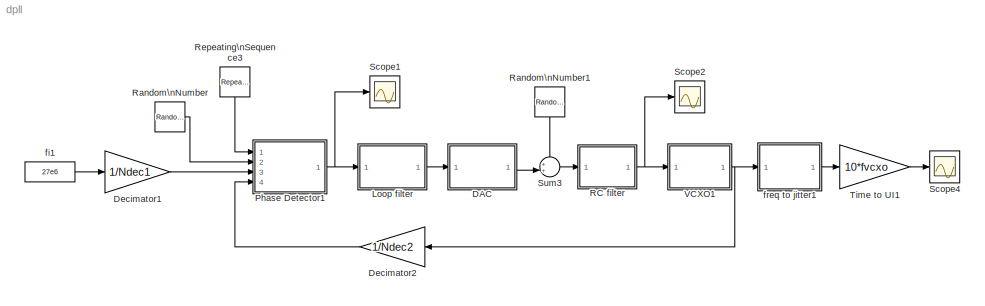
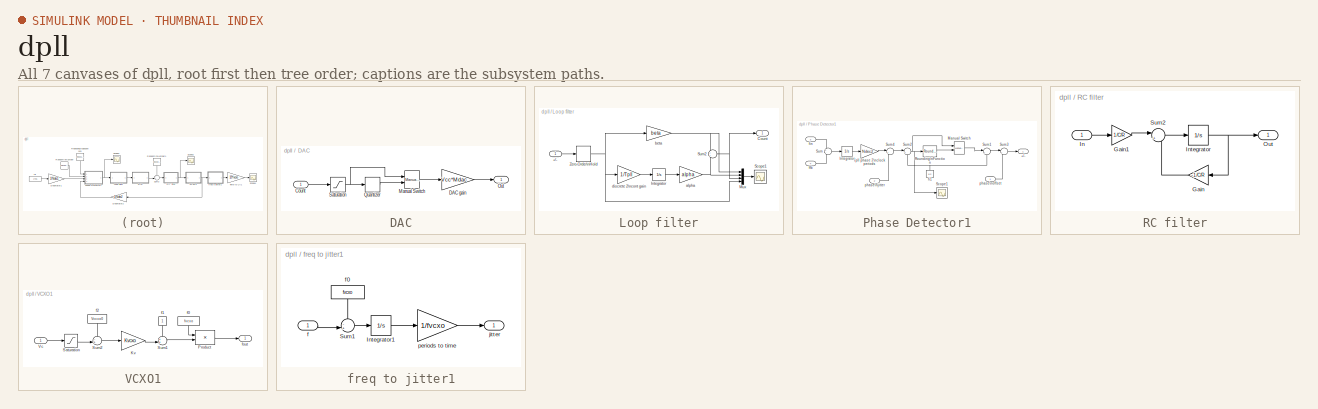
[diagram: thumbnail index - all 7 canvases of the model, root first then tree order]
MODEL dpll
KIND model
CONFIG AbsTol = 1e-12
CONFIG FixedStep = auto
CONFIG MaxStep = auto
CONFIG MinStep = auto
CONFIG RelTol = 1e-9
CONFIG Solver = ode45
CONFIG SolverMode = Auto
CONFIG StartTime = 0.0
CONFIG StopTime = 10
BLOCK [SubSystem] DAC
  Ports = [1, 1]
  TreatAsAtomicUnit = off
BLOCK [Inport] DAC/Count
BLOCK [Gain] DAC/DAC gain
  Gain = Vcc*Mdac
BLOCK [Reference] DAC/Manual Switch  REF=simulink/Signal\nRouting/Manual Switch
  Ports = [2, 1]
  SourceBlock = simulink/Signal\nRouting/Manual Switch
  SourceType = Manual Switch
  action = 0
  sw = 0
BLOCK [Outport] DAC/Out
BLOCK [Quantizer] DAC/Quantizer
  QuantizationInterval = 2^-Nbits
BLOCK [Saturate] DAC/Saturation
  LowerLimit = 0
  UpperLimit = 1
BLOCK [Gain] Decimator1
  Gain = 1/Ndec1
BLOCK [Gain] Decimator2
  Gain = 1/Ndec2
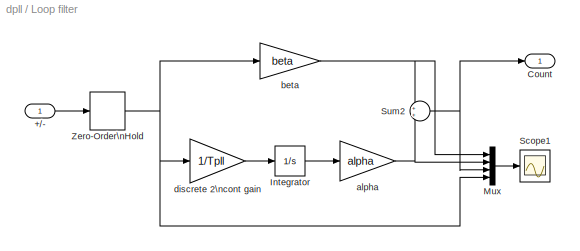
BLOCK [SubSystem] Loop filter
  Ports = [1, 1]
  TreatAsAtomicUnit = off
BLOCK [Inport] Loop filter/+//-
BLOCK [Outport] Loop filter/Count
BLOCK [Integrator] Loop filter/Integrator
  Ports = [1, 1]
BLOCK [Mux] Loop filter/Mux
  DisplayOption = bar
  Ports = [4, 1]
BLOCK [Scope] Loop filter/Scope1
  DataFormat = StructureWithTime
  LimitDataPoints = off
  NumInputPorts = 1
  Ports = [1]
  SaveName = ScopeData5
  TimeRange = 10
  YMax = 6.5
  YMin = -0.5
  ZoomMode = yonly
BLOCK [Sum] Loop filter/Sum2
  IconShape = round
  InputSameDT = off
  OutDataTypeMode = Inherit via internal rule
  Ports = [2, 1]
BLOCK [ZeroOrderHold] Loop filter/Zero-Order\nHold
  SampleTime = Tpll
BLOCK [Gain] Loop filter/alpha
  Gain = alpha
BLOCK [Gain] Loop filter/beta
  Gain = beta
BLOCK [Gain] Loop filter/discrete 2\ncont gain
  Gain = 1/Tpll
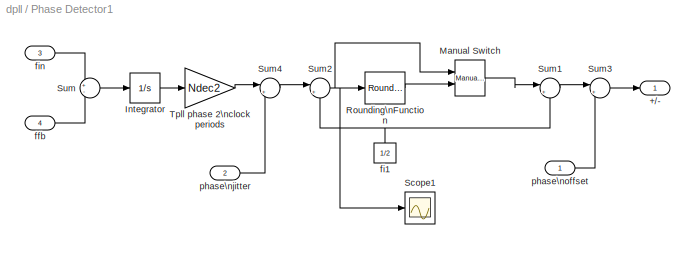
BLOCK [SubSystem] Phase Detector1
  Ports = [4, 1]
  TreatAsAtomicUnit = off
BLOCK [Outport] Phase Detector1/+//-
BLOCK [Integrator] Phase Detector1/Integrator
  Ports = [1, 1]
BLOCK [Reference] Phase Detector1/Manual Switch  REF=simulink/Signal\nRouting/Manual Switch
  Ports = [2, 1]
  SourceBlock = simulink/Signal\nRouting/Manual Switch
  SourceType = Manual Switch
  action = 0
  sw = 0
BLOCK [Rounding] Phase Detector1/Rounding\nFunction
  Operator = round
BLOCK [Scope] Phase Detector1/Scope1
  DataFormat = StructureWithTime
  LimitDataPoints = off
  NumInputPorts = 1
  Ports = [1]
  SaveName = ScopeData1
  TimeRange = 10
  YMax = 6.5
  YMin = -0.5
  ZoomMode = xonly
BLOCK [Sum] Phase Detector1/Sum
  IconShape = round
  InputSameDT = off
  Inputs = +-
  OutDataTypeMode = Inherit via internal rule
  Ports = [2, 1]
BLOCK [Sum] Phase Detector1/Sum1
  IconShape = round
  InputSameDT = off
  Inputs = |++
  OutDataTypeMode = Inherit via internal rule
  Ports = [2, 1]
BLOCK [Sum] Phase Detector1/Sum2
  IconShape = round
  InputSameDT = off
  Inputs = |+-
  OutDataTypeMode = Inherit via internal rule
  Ports = [2, 1]
BLOCK [Sum] Phase Detector1/Sum3
  IconShape = round
  InputSameDT = off
  Inputs = |++
  OutDataTypeMode = Inherit via internal rule
  Ports = [2, 1]
BLOCK [Sum] Phase Detector1/Sum4
  IconShape = round
  InputSameDT = off
  Inputs = |++
  OutDataTypeMode = Inherit via internal rule
  Ports = [2, 1]
BLOCK [Gain] Phase Detector1/Tpll phase 2\nclock periods
  Gain = Ndec2
BLOCK [Inport] Phase Detector1/ffb
  Port = 4
BLOCK [Constant] Phase Detector1/fi1
  Value = 1/2
BLOCK [Inport] Phase Detector1/fin
  Port = 3
BLOCK [Inport] Phase Detector1/phase\njitter
  Port = 2
BLOCK [Inport] Phase Detector1/phase\noffset
BLOCK [SubSystem] RC filter
  Ports = [1, 1]
  TreatAsAtomicUnit = off
BLOCK [Gain] RC filter/Gain
  Gain = -1/C/R
BLOCK [Gain] RC filter/Gain1
  Gain = 1/C/R
BLOCK [Inport] RC filter/In
BLOCK [Integrator] RC filter/Integrator
  InitialCondition = Vvcxo0
  Ports = [1, 1]
BLOCK [Outport] RC filter/Out
BLOCK [Sum] RC filter/Sum2
  IconShape = round
  InputSameDT = off
  Inputs = |++
  OutDataTypeMode = Inherit via internal rule
  Ports = [2, 1]
BLOCK [RandomNumber] Random\nNumber
  SampleTime = Tpll
  Variance = 0.05
BLOCK [RandomNumber] Random\nNumber1
  SampleTime = Tpll
  Variance = 0.1e-3
BLOCK [Reference] Repeating\nSequence3  REF=simulink/Sources/Repeating\nSequence
  Ports = [0, 1]
  SourceBlock = simulink/Sources/Repeating\nSequence
  SourceType = Repeating table
  rep_seq_t = [0 0.5 0.5 1]*5
  rep_seq_y = [0 0 1 1]*5
BLOCK [Scope] Scope1
  DataFormat = StructureWithTime
  LimitDataPoints = off
  NumInputPorts = 1
  Ports = [1]
  TimeRange = 10
  YMax = 180
  YMin = -30
  ZoomMode = yonly
BLOCK [Scope] Scope2
  DataFormat = StructureWithTime
  LimitDataPoints = off
  NumInputPorts = 1
  Ports = [1]
  SaveName = ScopeData3
  TimeRange = 10
  YMax = 1.2511
  YMin = 1.2496
  ZoomMode = yonly
BLOCK [Scope] Scope4
  DataFormat = StructureWithTime
  LimitDataPoints = off
  NumInputPorts = 1
  Ports = [1]
  SaveName = ScopeData2
  TimeRange = 10
  YMax = 55
  YMin = -10
  ZoomMode = yonly
BLOCK [Sum] Sum3
  IconShape = round
  InputSameDT = off
  Inputs = ++|
  OutDataTypeMode = Inherit via internal rule
  Ports = [2, 1]
BLOCK [Gain] Time to UI1
  Gain = 10*fvcxo
BLOCK [SubSystem] VCXO1
  Ports = [1, 1]
  TreatAsAtomicUnit = off
BLOCK [Gain] VCXO1/Kv
  Gain = Kvcxo
BLOCK [Product] VCXO1/Product
  InputSameDT = off
  Ports = [2, 1]
BLOCK [Saturate] VCXO1/Saturation
  LowerLimit = Vvcxomin
  UpperLimit = Vvcxomax
BLOCK [Sum] VCXO1/Sum1
  IconShape = round
  InputSameDT = off
  Inputs = ++|
  OutDataTypeMode = Inherit via internal rule
  Ports = [2, 1]
BLOCK [Sum] VCXO1/Sum2
  IconShape = round
  InputSameDT = off
  Inputs = -+|
  OutDataTypeMode = Inherit via internal rule
  Ports = [2, 1]
BLOCK [Inport] VCXO1/Vc
BLOCK [Constant] VCXO1/f0
  Value = fvcxo
BLOCK [Constant] VCXO1/f1
BLOCK [Constant] VCXO1/f2
  Value = Vvcxo0
BLOCK [Outport] VCXO1/fout
BLOCK [Constant] fi1
  Value = 27e6
BLOCK [SubSystem] freq to jitter1
  Ports = [1, 1]
  TreatAsAtomicUnit = off
BLOCK [Integrator] freq to jitter1/Integrator1
  Ports = [1, 1]
BLOCK [Sum] freq to jitter1/Sum1
  IconShape = round
  InputSameDT = off
  Inputs = -+|
  OutDataTypeMode = Inherit via internal rule
  Ports = [2, 1]
BLOCK [Inport] freq to jitter1/f
BLOCK [Constant] freq to jitter1/f0
  Value = fvcxo
BLOCK [Outport] freq to jitter1/jitter
BLOCK [Gain] freq to jitter1/periods to time
  Gain = 1/fvcxo
LINE DAC/Count:1 -> DAC/Saturation:1
LINE DAC/DAC gain:1 -> DAC/Out:1
LINE DAC/Manual Switch:1 -> DAC/DAC gain:1
LINE DAC/Quantizer:1 -> DAC/Manual Switch:2
NET DAC/Saturation:1 -> DAC/Manual Switch:1, DAC/Quantizer:1
LINE DAC:1 -> Sum3:2
LINE Decimator1:1 -> Phase Detector1:3
LINE Decimator2:1 -> Phase Detector1:4
LINE Loop filter/+//-:1 -> Loop filter/Zero-Order\nHold:1
LINE Loop filter/Integrator:1 -> Loop filter/alpha:1
LINE Loop filter/Mux:1 -> Loop filter/Scope1:1
NET Loop filter/Sum2:1 -> Loop filter/Count:1, Loop filter/Mux:3
NET Loop filter/Zero-Order\nHold:1 -> Loop filter/Mux:4, Loop filter/beta:1, Loop filter/discrete 2\ncont gain:1
NET Loop filter/alpha:1 -> Loop filter/Mux:2, Loop filter/Sum2:2
NET Loop filter/beta:1 -> Loop filter/Mux:1, Loop filter/Sum2:1
LINE Loop filter/discrete 2\ncont gain:1 -> Loop filter/Integrator:1
LINE Loop filter:1 -> DAC:1
LINE Phase Detector1/Integrator:1 -> Phase Detector1/Tpll phase 2\nclock periods:1
LINE Phase Detector1/Manual Switch:1 -> Phase Detector1/Sum1:1
LINE Phase Detector1/Rounding\nFunction:1 -> Phase Detector1/Manual Switch:2
LINE Phase Detector1/Sum1:1 -> Phase Detector1/Sum3:1
NET Phase Detector1/Sum2:1 -> Phase Detector1/Manual Switch:1, Phase Detector1/Rounding\nFunction:1, Phase Detector1/Scope1:1
LINE Phase Detector1/Sum3:1 -> Phase Detector1/+//-:1
LINE Phase Detector1/Sum4:1 -> Phase Detector1/Sum2:1
LINE Phase Detector1/Sum:1 -> Phase Detector1/Integrator:1
LINE Phase Detector1/Tpll phase 2\nclock periods:1 -> Phase Detector1/Sum4:1
LINE Phase Detector1/ffb:1 -> Phase Detector1/Sum:2
NET Phase Detector1/fi1:1 -> Phase Detector1/Sum1:2, Phase Detector1/Sum2:2
LINE Phase Detector1/fin:1 -> Phase Detector1/Sum:1
LINE Phase Detector1/phase\njitter:1 -> Phase Detector1/Sum4:2
LINE Phase Detector1/phase\noffset:1 -> Phase Detector1/Sum3:2
NET Phase Detector1:1 -> Loop filter:1, Scope1:1
LINE RC filter/Gain1:1 -> RC filter/Sum2:1
LINE RC filter/Gain:1 -> RC filter/Sum2:2
LINE RC filter/In:1 -> RC filter/Gain1:1
NET RC filter/Integrator:1 -> RC filter/Gain:1, RC filter/Out:1
LINE RC filter/Sum2:1 -> RC filter/Integrator:1
NET RC filter:1 -> Scope2:1, VCXO1:1
LINE Random\nNumber1:1 -> Sum3:1
LINE Random\nNumber:1 -> Phase Detector1:2
LINE Repeating\nSequence3:1 -> Phase Detector1:1
LINE Sum3:1 -> RC filter:1
LINE Time to UI1:1 -> Scope4:1
LINE VCXO1/Kv:1 -> VCXO1/Sum1:2
LINE VCXO1/Product:1 -> VCXO1/fout:1
LINE VCXO1/Saturation:1 -> VCXO1/Sum2:2
LINE VCXO1/Sum1:1 -> VCXO1/Product:2
LINE VCXO1/Sum2:1 -> VCXO1/Kv:1
LINE VCXO1/Vc:1 -> VCXO1/Saturation:1
LINE VCXO1/f0:1 -> VCXO1/Product:1
LINE VCXO1/f1:1 -> VCXO1/Sum1:1
LINE VCXO1/f2:1 -> VCXO1/Sum2:1
NET VCXO1:1 -> Decimator2:1, freq to jitter1:1
LINE fi1:1 -> Decimator1:1
LINE freq to jitter1/Integrator1:1 -> freq to jitter1/periods to time:1
LINE freq to jitter1/Sum1:1 -> freq to jitter1/Integrator1:1
LINE freq to jitter1/f0:1 -> freq to jitter1/Sum1:1
LINE freq to jitter1/f:1 -> freq to jitter1/Sum1:2
LINE freq to jitter1/periods to time:1 -> freq to jitter1/jitter:1
LINE freq to jitter1:1 -> Time to UI1:1
note: NET lines group one-source signal fan-out (src -> all destinations, sorted); 1:1 wires keep LINE
